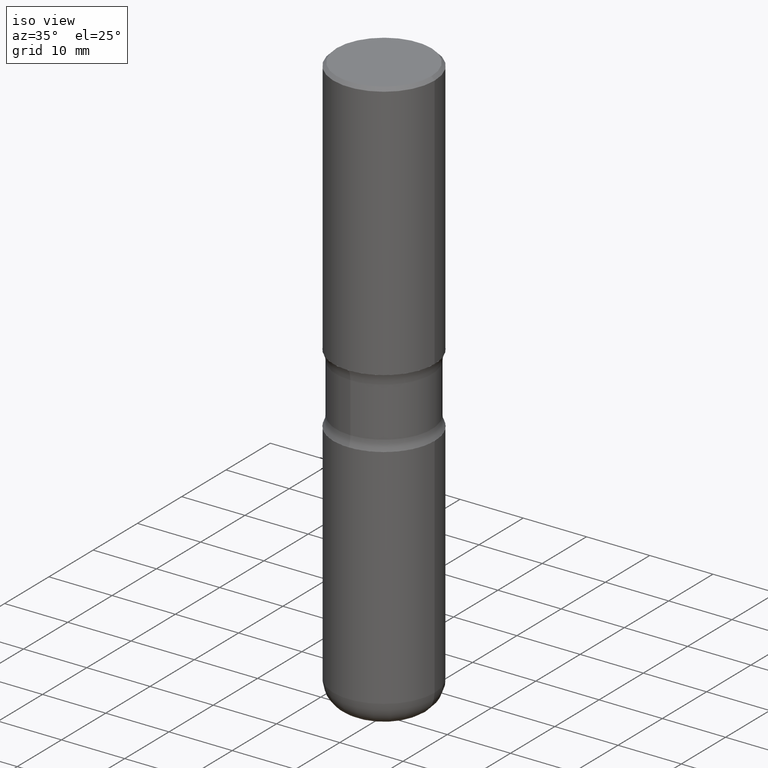
[diagram: clean part render]
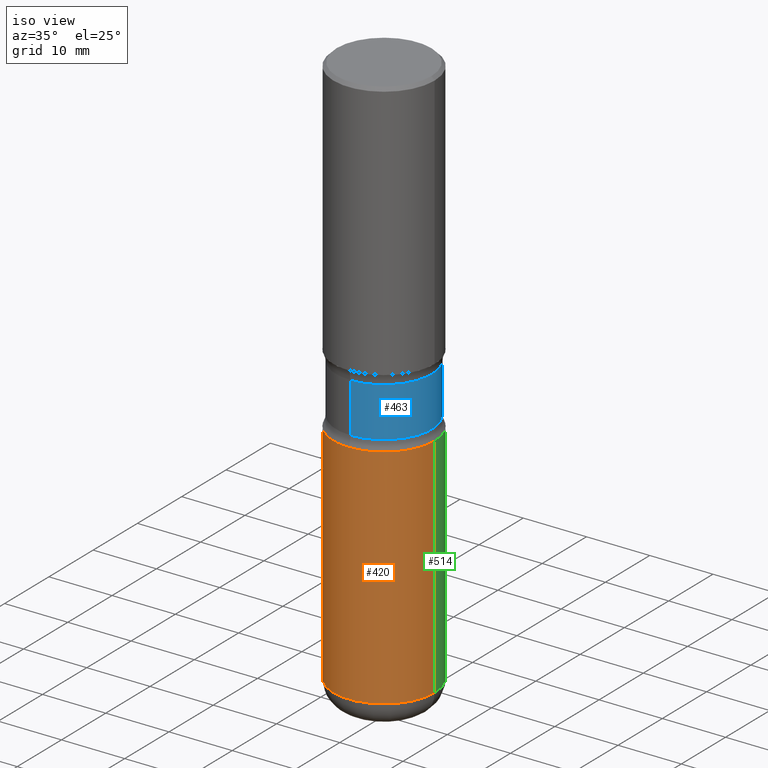
[diagram: same view with three faces highlighted in distinct colors, each labeled with its STEP entity id]
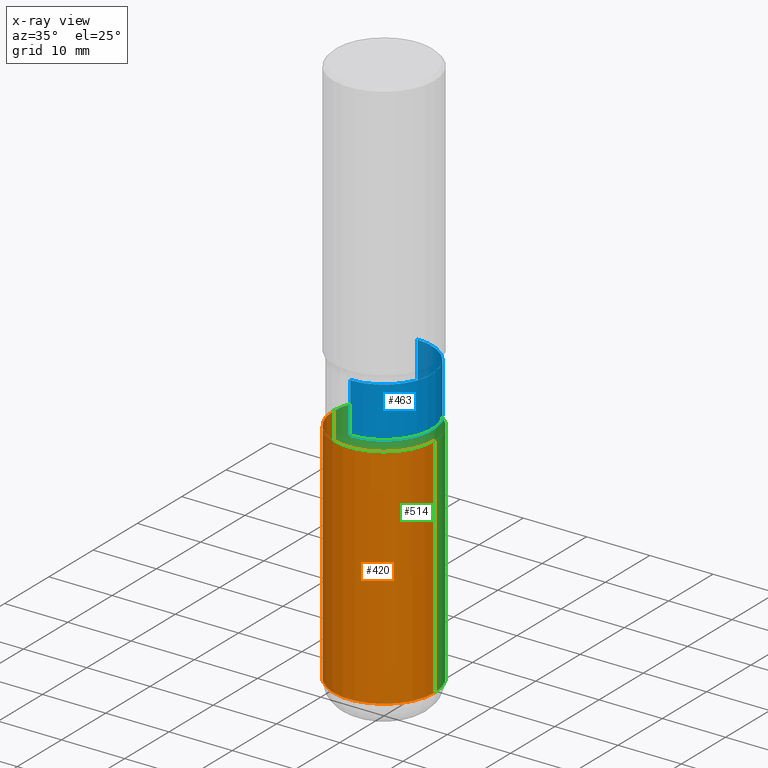
[diagram: x-ray of the same camera — body ghosted, the three highlighted faces saturated]
A machine part, iso view with three faces highlighted in distinct colors.
The next image is the same camera in x-ray (body ghosted, the three faces saturated) — at least one of them is partly hidden behind the body in this view.
Their STEP definitions:

[orange] entity #420 — the highlighted cylindrical surface (partial cylindrical patch) has radius 7.9997 mm, axis along (-0, 0, 1).
#8 = DIRECTION ( 'NONE',  ( -2.445468806185136597E-29, 3.491481338843145583E-15, 1.000000000000000000 ) ) ;
#26 = DIRECTION ( 'NONE',  ( 1.000000000000000000, -6.982962677686264344E-15, 0.000000000000000000 ) ) ;
#50 = CARTESIAN_POINT ( 'NONE',  ( 8.471103944625313198E-29, -1.209449135775265635E-14, -3.463999999999999968 ) ) ;
#51 = LINE ( 'NONE', #521, #320 ) ;
#53 = FACE_OUTER_BOUND ( 'NONE', #495, .T. ) ;
#63 = VERTEX_POINT ( 'NONE', #76 ) ;
#76 = CARTESIAN_POINT ( 'NONE',  ( -0.3149500000000002298, -7.383271631039733137E-15, -2.047199999999999243 ) ) ;
#86 = AXIS2_PLACEMENT_3D ( 'NONE', #382, #518, #179 ) ;
#89 = CYLINDRICAL_SURFACE ( 'NONE', #86, 0.3149500000000002853 ) ;
#102 = VERTEX_POINT ( 'NONE', #383 ) ;
#151 = EDGE_CURVE ( 'NONE', #207, #63, #51, .T. ) ;
#179 = DIRECTION ( 'NONE',  ( 1.000000000000000000, -6.982962677686267499E-15, 4.876176775795936353E-29 ) ) ;
#181 = DIRECTION ( 'NONE',  ( 1.000000000000000000, -6.982962677686267499E-15, 0.000000000000000000 ) ) ;
#196 = AXIS2_PLACEMENT_3D ( 'NONE', #399, #352, #26 ) ;
#202 = CIRCLE ( 'NONE', #267, 0.3149500000000003963 ) ;
#207 = VERTEX_POINT ( 'NONE', #335 ) ;
#229 = ORIENTED_EDGE ( 'NONE', *, *, #500, .T. ) ;
#267 = AXIS2_PLACEMENT_3D ( 'NONE', #50, #8, #181 ) ;
#290 = CARTESIAN_POINT ( 'NONE',  ( 0.3149500000000002298, -9.347044692216974917E-15, -2.047199999999999243 ) ) ;
#294 = EDGE_CURVE ( 'NONE', #63, #449, #423, .T. ) ;
#298 = LINE ( 'NONE', #421, #480 ) ;
#319 = ORIENTED_EDGE ( 'NONE', *, *, #294, .F. ) ;
#320 = VECTOR ( 'NONE', #473, 39.37007874015748143 ) ;
#335 = CARTESIAN_POINT ( 'NONE',  ( -0.3149500000000003408, -9.856637011476220367E-15, -3.463999999999999968 ) ) ;
#352 = DIRECTION ( 'NONE',  ( -2.445468806185136597E-29, 3.491481338843145583E-15, 1.000000000000000000 ) ) ;
#382 = CARTESIAN_POINT ( 'NONE',  ( 0.000000000000000000, 0.000000000000000000, 0.000000000000000000 ) ) ;
#383 = CARTESIAN_POINT ( 'NONE',  ( 0.3149500000000003408, -1.429377545308994780E-14, -3.463999999999999968 ) ) ;
#399 = CARTESIAN_POINT ( 'NONE',  ( 5.006363740022209438E-29, -7.147760596879685046E-15, -2.047199999999999243 ) ) ;
#420 = ADVANCED_FACE ( 'NONE', ( #53 ), #89, .T. ) ;
#421 = CARTESIAN_POINT ( 'NONE',  ( 0.3149500000000002853, -2.199284095337291843E-15, 1.535751875536931531E-29 ) ) ;
#423 = CIRCLE ( 'NONE', #196, 0.3149500000000002298 ) ;
#449 = VERTEX_POINT ( 'NONE', #290 ) ;
#464 = EDGE_CURVE ( 'NONE', #102, #449, #298, .T. ) ;
#473 = DIRECTION ( 'NONE',  ( -2.445468806185136877E-29, 3.491481338843145188E-15, 1.000000000000000000 ) ) ;
#474 = DIRECTION ( 'NONE',  ( -2.445468806185136877E-29, 3.491481338843145188E-15, 1.000000000000000000 ) ) ;
#480 = VECTOR ( 'NONE', #474, 39.37007874015748143 ) ;
#495 = EDGE_LOOP ( 'NONE', ( #555, #229, #541, #319 ) ) ;
#500 = EDGE_CURVE ( 'NONE', #207, #102, #202, .T. ) ;
#518 = DIRECTION ( 'NONE',  ( -2.445468806185136597E-29, 3.491481338843145583E-15, 1.000000000000000000 ) ) ;
#521 = CARTESIAN_POINT ( 'NONE',  ( -0.3149500000000002853, 2.237854346276437562E-15, -1.549218606675783797E-29 ) ) ;
#541 = ORIENTED_EDGE ( 'NONE', *, *, #464, .T. ) ;
#555 = ORIENTED_EDGE ( 'NONE', *, *, #151, .F. ) ;

[blue] entity #463 — the highlighted cylindrical surface (partial cylindrical patch) has radius 7.5819 mm, axis along (0, -0, -1).
#2 = CARTESIAN_POINT ( 'NONE',  ( -2.104286248366432366E-15, -0.2985000000000057052, -1.676083042035704018 ) ) ;
#4 = CIRCLE ( 'NONE', #256, 0.2984999999999998210 ) ;
#32 = EDGE_CURVE ( 'NONE', #485, #443, #498, .T. ) ;
#52 = EDGE_CURVE ( 'NONE', #443, #65, #4, .T. ) ;
#65 = VERTEX_POINT ( 'NONE', #459 ) ;
#92 = FACE_OUTER_BOUND ( 'NONE', #550, .T. ) ;
#133 = CARTESIAN_POINT ( 'NONE',  ( 2.084414359289390435E-15, 0.2984999999999940479, -1.676083042035706239 ) ) ;
#136 = CYLINDRICAL_SURFACE ( 'NONE', #313, 0.2984999999999998210 ) ;
#150 = VERTEX_POINT ( 'NONE', #2 ) ;
#170 = AXIS2_PLACEMENT_3D ( 'NONE', #199, #316, #231 ) ;
#174 = DIRECTION ( 'NONE',  ( 2.431229257173367832E-29, -3.511873183492796268E-15, -1.000000000000000000 ) ) ;
#175 = DIRECTION ( 'NONE',  ( 6.982962677686266711E-15, 1.000000000000000000, -3.660767830705882322E-15 ) ) ;
#182 = CARTESIAN_POINT ( 'NONE',  ( -2.047858652334712692E-15, -0.2985000000000124776, -3.621999999999998110 ) ) ;
#185 = ORIENTED_EDGE ( 'NONE', *, *, #220, .T. ) ;
#199 = CARTESIAN_POINT ( 'NONE',  ( 4.104093333986238710E-29, -5.844444904265456773E-15, -1.676083042035705128 ) ) ;
#216 = VECTOR ( 'NONE', #174, 39.37007874015748143 ) ;
#220 = EDGE_CURVE ( 'NONE', #150, #65, #476, .T. ) ;
#231 = DIRECTION ( 'NONE',  ( 6.982962677686265922E-15, 1.000000000000000000, -3.660767830705881533E-15 ) ) ;
#251 = CARTESIAN_POINT ( 'NONE',  ( 2.084414359289397929E-15, 0.2984999999999928821, -1.985216957964294204 ) ) ;
#253 = CARTESIAN_POINT ( 'NONE',  ( 8.835063574218829825E-29, -1.267825848624413908E-14, -3.621999999999999442 ) ) ;
#256 = AXIS2_PLACEMENT_3D ( 'NONE', #460, #554, #502 ) ;
#257 = CIRCLE ( 'NONE', #170, 0.2984999999999998765 ) ;
#310 = DIRECTION ( 'NONE',  ( 2.431229257173367832E-29, -3.511873183492796268E-15, -1.000000000000000000 ) ) ;
#313 = AXIS2_PLACEMENT_3D ( 'NONE', #253, #470, #175 ) ;
#316 = DIRECTION ( 'NONE',  ( 2.431229257173367832E-29, -3.511873183492796268E-15, -1.000000000000000000 ) ) ;
#317 = ORIENTED_EDGE ( 'NONE', *, *, #333, .T. ) ;
#333 = EDGE_CURVE ( 'NONE', #485, #150, #257, .T. ) ;
#357 = VECTOR ( 'NONE', #310, 39.37007874015748143 ) ;
#401 = ORIENTED_EDGE ( 'NONE', *, *, #52, .F. ) ;
#443 = VERTEX_POINT ( 'NONE', #251 ) ;
#446 = ORIENTED_EDGE ( 'NONE', *, *, #32, .F. ) ;
#459 = CARTESIAN_POINT ( 'NONE',  ( -2.104286248366424083E-15, -0.2985000000000068154, -1.985216957964291984 ) ) ;
#460 = CARTESIAN_POINT ( 'NONE',  ( 4.855668754776393966E-29, -6.930084013723182929E-15, -1.985216957964293094 ) ) ;
#463 = ADVANCED_FACE ( 'NONE', ( #92 ), #136, .T. ) ;
#470 = DIRECTION ( 'NONE',  ( 2.431229257173367832E-29, -3.511873183492796268E-15, -1.000000000000000000 ) ) ;
#476 = LINE ( 'NONE', #182, #216 ) ;
#485 = VERTEX_POINT ( 'NONE', #133 ) ;
#498 = LINE ( 'NONE', #535, #357 ) ;
#502 = DIRECTION ( 'NONE',  ( 6.982962677686266711E-15, 1.000000000000000000, -3.660767830705882322E-15 ) ) ;
#535 = CARTESIAN_POINT ( 'NONE',  ( 2.084414359289437372E-15, 0.2984999999999871645, -3.622000000000000330 ) ) ;
#550 = EDGE_LOOP ( 'NONE', ( #317, #185, #401, #446 ) ) ;
#554 = DIRECTION ( 'NONE',  ( 2.431229257173367832E-29, -3.511873183492796268E-15, -1.000000000000000000 ) ) ;

[green] entity #514 — the highlighted cylindrical surface (partial cylindrical patch) has radius 7.9997 mm, axis along (-0, 0, 1).
#18 = AXIS2_PLACEMENT_3D ( 'NONE', #289, #519, #332 ) ;
#23 = DIRECTION ( 'NONE',  ( 1.000000000000000000, -6.982962677686264344E-15, 0.000000000000000000 ) ) ;
#45 = CARTESIAN_POINT ( 'NONE',  ( 0.000000000000000000, 0.000000000000000000, 0.000000000000000000 ) ) ;
#51 = LINE ( 'NONE', #521, #320 ) ;
#57 = ORIENTED_EDGE ( 'NONE', *, *, #263, .T. ) ;
#63 = VERTEX_POINT ( 'NONE', #76 ) ;
#67 = DIRECTION ( 'NONE',  ( 1.000000000000000000, -6.982962677686267499E-15, 4.876176775795936353E-29 ) ) ;
#76 = CARTESIAN_POINT ( 'NONE',  ( -0.3149500000000002298, -7.383271631039733137E-15, -2.047199999999999243 ) ) ;
#80 = AXIS2_PLACEMENT_3D ( 'NONE', #45, #450, #67 ) ;
#102 = VERTEX_POINT ( 'NONE', #383 ) ;
#130 = CIRCLE ( 'NONE', #200, 0.3149500000000002298 ) ;
#151 = EDGE_CURVE ( 'NONE', #207, #63, #51, .T. ) ;
#195 = ORIENTED_EDGE ( 'NONE', *, *, #464, .F. ) ;
#200 = AXIS2_PLACEMENT_3D ( 'NONE', #494, #350, #23 ) ;
#207 = VERTEX_POINT ( 'NONE', #335 ) ;
#248 = FACE_OUTER_BOUND ( 'NONE', #448, .T. ) ;
#263 = EDGE_CURVE ( 'NONE', #102, #207, #329, .T. ) ;
#289 = CARTESIAN_POINT ( 'NONE',  ( 8.471103944625313198E-29, -1.209449135775265635E-14, -3.463999999999999968 ) ) ;
#290 = CARTESIAN_POINT ( 'NONE',  ( 0.3149500000000002298, -9.347044692216974917E-15, -2.047199999999999243 ) ) ;
#298 = LINE ( 'NONE', #421, #480 ) ;
#320 = VECTOR ( 'NONE', #473, 39.37007874015748143 ) ;
#329 = CIRCLE ( 'NONE', #18, 0.3149500000000003963 ) ;
#332 = DIRECTION ( 'NONE',  ( 1.000000000000000000, -6.982962677686267499E-15, 0.000000000000000000 ) ) ;
#335 = CARTESIAN_POINT ( 'NONE',  ( -0.3149500000000003408, -9.856637011476220367E-15, -3.463999999999999968 ) ) ;
#350 = DIRECTION ( 'NONE',  ( -2.445468806185136597E-29, 3.491481338843145583E-15, 1.000000000000000000 ) ) ;
#383 = CARTESIAN_POINT ( 'NONE',  ( 0.3149500000000003408, -1.429377545308994780E-14, -3.463999999999999968 ) ) ;
#389 = ORIENTED_EDGE ( 'NONE', *, *, #151, .T. ) ;
#421 = CARTESIAN_POINT ( 'NONE',  ( 0.3149500000000002853, -2.199284095337291843E-15, 1.535751875536931531E-29 ) ) ;
#427 = CYLINDRICAL_SURFACE ( 'NONE', #80, 0.3149500000000002853 ) ;
#448 = EDGE_LOOP ( 'NONE', ( #57, #389, #528, #195 ) ) ;
#449 = VERTEX_POINT ( 'NONE', #290 ) ;
#450 = DIRECTION ( 'NONE',  ( -2.445468806185136597E-29, 3.491481338843145583E-15, 1.000000000000000000 ) ) ;
#464 = EDGE_CURVE ( 'NONE', #102, #449, #298, .T. ) ;
#473 = DIRECTION ( 'NONE',  ( -2.445468806185136877E-29, 3.491481338843145188E-15, 1.000000000000000000 ) ) ;
#474 = DIRECTION ( 'NONE',  ( -2.445468806185136877E-29, 3.491481338843145188E-15, 1.000000000000000000 ) ) ;
#480 = VECTOR ( 'NONE', #474, 39.37007874015748143 ) ;
#494 = CARTESIAN_POINT ( 'NONE',  ( 5.006363740022209438E-29, -7.147760596879685046E-15, -2.047199999999999243 ) ) ;
#514 = ADVANCED_FACE ( 'NONE', ( #248 ), #427, .T. ) ;
#519 = DIRECTION ( 'NONE',  ( -2.445468806185136597E-29, 3.491481338843145583E-15, 1.000000000000000000 ) ) ;
#521 = CARTESIAN_POINT ( 'NONE',  ( -0.3149500000000002853, 2.237854346276437562E-15, -1.549218606675783797E-29 ) ) ;
#528 = ORIENTED_EDGE ( 'NONE', *, *, #532, .F. ) ;
#532 = EDGE_CURVE ( 'NONE', #449, #63, #130, .T. ) ;